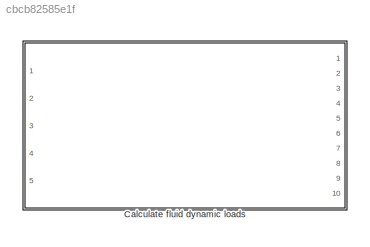
MODEL slx_cbcb82585e1f
KIND library
CONFIG AbsTol = auto
CONFIG EnableMultiTasking = off
CONFIG FixedStep = auto
CONFIG MaxStep = auto
CONFIG MinStep = auto
CONFIG RelTol = 1e-3
CONFIG SampleTimeConstraint = Unconstrained
CONFIG Solver = VariableStepAuto
CONFIG SolverName = VariableStepAuto
CONFIG StartTime = 0.0
CONFIG StopTime = 10.0
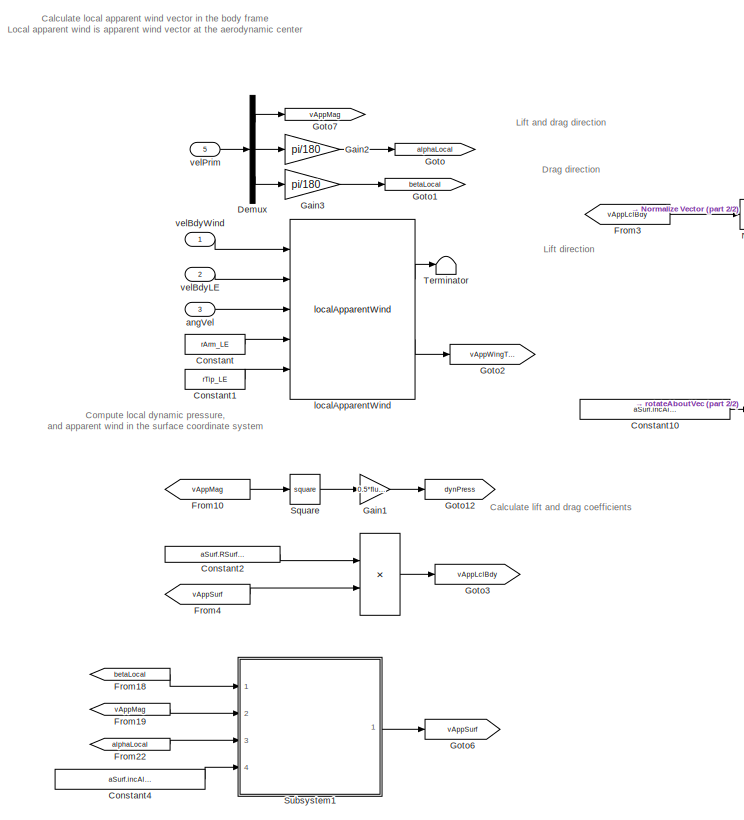
[diagram: Calculate fluid dynamic loads - part 1/2, left side, full height]
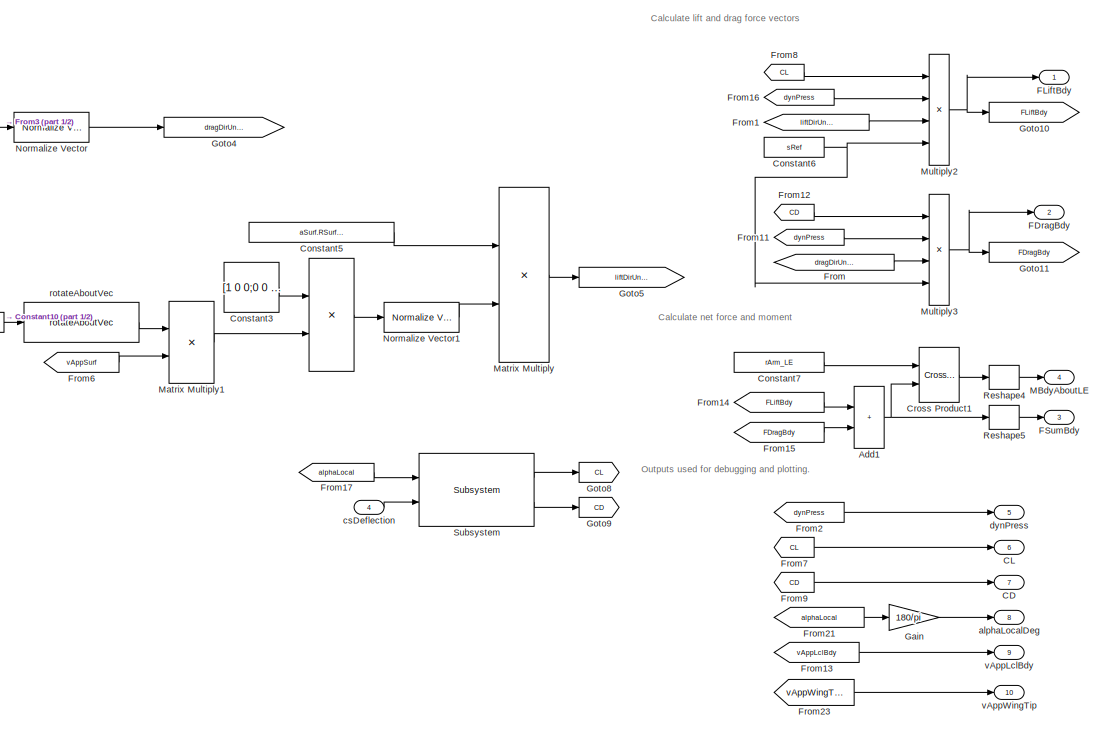
[diagram: Calculate fluid dynamic loads - part 2/2, right side, full height]
BLOCK [SubSystem] Calculate fluid dynamic loads
  Ports = [5, 10]
  RequestExecContextInheritance = off
BLOCK [Product] Calculate fluid dynamic loads/ 
  Multiplication = Matrix(*)
  Ports = [2, 1]
BLOCK [Product] Calculate fluid dynamic loads/  
  Multiplication = Matrix(*)
  Ports = [2, 1]
BLOCK [Sum] Calculate fluid dynamic loads/Add1
  IconShape = rectangular
  Ports = [2, 1]
BLOCK [Outport] Calculate fluid dynamic loads/CD
  Port = 7
  VectorParamsAs1DForOutWhenUnconnected = off
BLOCK [Outport] Calculate fluid dynamic loads/CL
  Port = 6
  VectorParamsAs1DForOutWhenUnconnected = off
BLOCK [Constant] Calculate fluid dynamic loads/Constant
  Value = rArm_LE
  VectorParams1D = off
BLOCK [Constant] Calculate fluid dynamic loads/Constant1
  Value = rTip_LE
  VectorParams1D = off
BLOCK [Constant] Calculate fluid dynamic loads/Constant10
  Value = aSurf.incAlphaUnitVecSurf.Value
  VectorParams1D = off
BLOCK [Constant] Calculate fluid dynamic loads/Constant2
  Value = aSurf.RSurf2Bdy.Value
  VectorParams1D = off
BLOCK [Constant] Calculate fluid dynamic loads/Constant3
  Value = [1 0 0;0 0 0;0 0 1]
  VectorParams1D = off
BLOCK [Constant] Calculate fluid dynamic loads/Constant4
  Value = aSurf.incAlphaUnitVecSurf.Value
  VectorParams1D = off
BLOCK [Constant] Calculate fluid dynamic loads/Constant5
  Value = aSurf.RSurf2Bdy.Value
  VectorParams1D = off
BLOCK [Constant] Calculate fluid dynamic loads/Constant6
  Value = sRef
BLOCK [Constant] Calculate fluid dynamic loads/Constant7
  Value = rArm_LE
  VectorParams1D = off
BLOCK [Reference] Calculate fluid dynamic loads/Cross Product1  REF=vrlib/Utilities/Cross Product
  Ports = [2, 1]
  SourceBlock = vrlib/Utilities/Cross Product
  SourceProductBaseCode = SL
  SourceType = Cross Product
BLOCK [Demux] Calculate fluid dynamic loads/Demux
  Outputs = 3
  Ports = [1, 3]
BLOCK [Outport] Calculate fluid dynamic loads/FDragBdy
  Port = 2
  VectorParamsAs1DForOutWhenUnconnected = off
BLOCK [Outport] Calculate fluid dynamic loads/FLiftBdy
  VectorParamsAs1DForOutWhenUnconnected = off
BLOCK [Outport] Calculate fluid dynamic loads/FSumBdy
  Port = 3
  VectorParamsAs1DForOutWhenUnconnected = off
BLOCK [From] Calculate fluid dynamic loads/From
  GotoTag = dragDirUnitVecBdy
BLOCK [From] Calculate fluid dynamic loads/From1
  GotoTag = liftDirUnitVecBdy
BLOCK [From] Calculate fluid dynamic loads/From10
  GotoTag = vAppMag
BLOCK [From] Calculate fluid dynamic loads/From11
  GotoTag = dynPress
BLOCK [From] Calculate fluid dynamic loads/From12
  GotoTag = CD
BLOCK [From] Calculate fluid dynamic loads/From13
  GotoTag = vAppLclBdy
BLOCK [From] Calculate fluid dynamic loads/From14
  GotoTag = FLiftBdy
BLOCK [From] Calculate fluid dynamic loads/From15
  GotoTag = FDragBdy
BLOCK [From] Calculate fluid dynamic loads/From16
  GotoTag = dynPress
BLOCK [From] Calculate fluid dynamic loads/From17
  GotoTag = alphaLocal
BLOCK [From] Calculate fluid dynamic loads/From18
  GotoTag = betaLocal
BLOCK [From] Calculate fluid dynamic loads/From19
  GotoTag = vAppMag
BLOCK [From] Calculate fluid dynamic loads/From2
  GotoTag = dynPress
BLOCK [From] Calculate fluid dynamic loads/From21
  GotoTag = alphaLocal
BLOCK [From] Calculate fluid dynamic loads/From22
  GotoTag = alphaLocal
BLOCK [From] Calculate fluid dynamic loads/From23
  GotoTag = vAppWingTip
BLOCK [From] Calculate fluid dynamic loads/From3
  GotoTag = vAppLclBdy
BLOCK [From] Calculate fluid dynamic loads/From4
  GotoTag = vAppSurf
BLOCK [From] Calculate fluid dynamic loads/From6
  GotoTag = vAppSurf
BLOCK [From] Calculate fluid dynamic loads/From7
  GotoTag = CL
BLOCK [From] Calculate fluid dynamic loads/From8
  GotoTag = CL
BLOCK [From] Calculate fluid dynamic loads/From9
  GotoTag = CD
BLOCK [Gain] Calculate fluid dynamic loads/Gain
  Gain = 180/pi
BLOCK [Gain] Calculate fluid dynamic loads/Gain1
  Gain = 0.5*fluidDensity
BLOCK [Gain] Calculate fluid dynamic loads/Gain2
  Gain = pi/180
BLOCK [Gain] Calculate fluid dynamic loads/Gain3
  Gain = pi/180
BLOCK [Goto] Calculate fluid dynamic loads/Goto
  GotoTag = alphaLocal
BLOCK [Goto] Calculate fluid dynamic loads/Goto1
  GotoTag = betaLocal
BLOCK [Goto] Calculate fluid dynamic loads/Goto10
  GotoTag = FLiftBdy
BLOCK [Goto] Calculate fluid dynamic loads/Goto11
  GotoTag = FDragBdy
BLOCK [Goto] Calculate fluid dynamic loads/Goto12
  GotoTag = dynPress
BLOCK [Goto] Calculate fluid dynamic loads/Goto2
  GotoTag = vAppWingTip
BLOCK [Goto] Calculate fluid dynamic loads/Goto3
  GotoTag = vAppLclBdy
BLOCK [Goto] Calculate fluid dynamic loads/Goto4
  GotoTag = dragDirUnitVecBdy
BLOCK [Goto] Calculate fluid dynamic loads/Goto5
  GotoTag = liftDirUnitVecBdy
BLOCK [Goto] Calculate fluid dynamic loads/Goto6
  GotoTag = vAppSurf
BLOCK [Goto] Calculate fluid dynamic loads/Goto7
  GotoTag = vAppMag
BLOCK [Goto] Calculate fluid dynamic loads/Goto8
  GotoTag = CL
BLOCK [Goto] Calculate fluid dynamic loads/Goto9
  GotoTag = CD
BLOCK [Outport] Calculate fluid dynamic loads/MBdyAboutLE
  Port = 4
  PortDimensions = [3 1]
  VectorParamsAs1DForOutWhenUnconnected = off
BLOCK [Product] Calculate fluid dynamic loads/Matrix Multiply
  Multiplication = Matrix(*)
  Ports = [2, 1]
BLOCK [Product] Calculate fluid dynamic loads/Matrix Multiply1
  Multiplication = Matrix(*)
  Ports = [2, 1]
BLOCK [Product] Calculate fluid dynamic loads/Multiply2
  Inputs = 4
  Ports = [4, 1]
BLOCK [Product] Calculate fluid dynamic loads/Multiply3
  Inputs = 4
  Ports = [4, 1]
BLOCK [Reference] Calculate fluid dynamic loads/Normalize Vector  REF=vrlib/Utilities/Normalize Vector
  Ports = [1, 1]
  SourceBlock = vrlib/Utilities/Normalize Vector
  SourceProductBaseCode = SL
  SourceType = Normalize Vector
BLOCK [Reference] Calculate fluid dynamic loads/Normalize Vector1  REF=vrlib/Utilities/Normalize Vector
  Ports = [1, 1]
  SourceBlock = vrlib/Utilities/Normalize Vector
  SourceProductBaseCode = SL
  SourceType = Normalize Vector
BLOCK [Reshape] Calculate fluid dynamic loads/Reshape4
  OutputDimensionality = Column vector (2-D)
  Ports = [1, 1]
BLOCK [Reshape] Calculate fluid dynamic loads/Reshape5
  OutputDimensionality = Column vector (2-D)
  Ports = [1, 1]
BLOCK [Math] Calculate fluid dynamic loads/Square
  Operator = square
  Ports = [1, 1]
BLOCK [Reference] Calculate fluid dynamic loads/Subsystem  REF=Copy_of_clAndCdCalculator_cl/Subsystem
  Ports = [2, 2]
  SourceBlock = Copy_of_clAndCdCalculator_cl/Subsystem
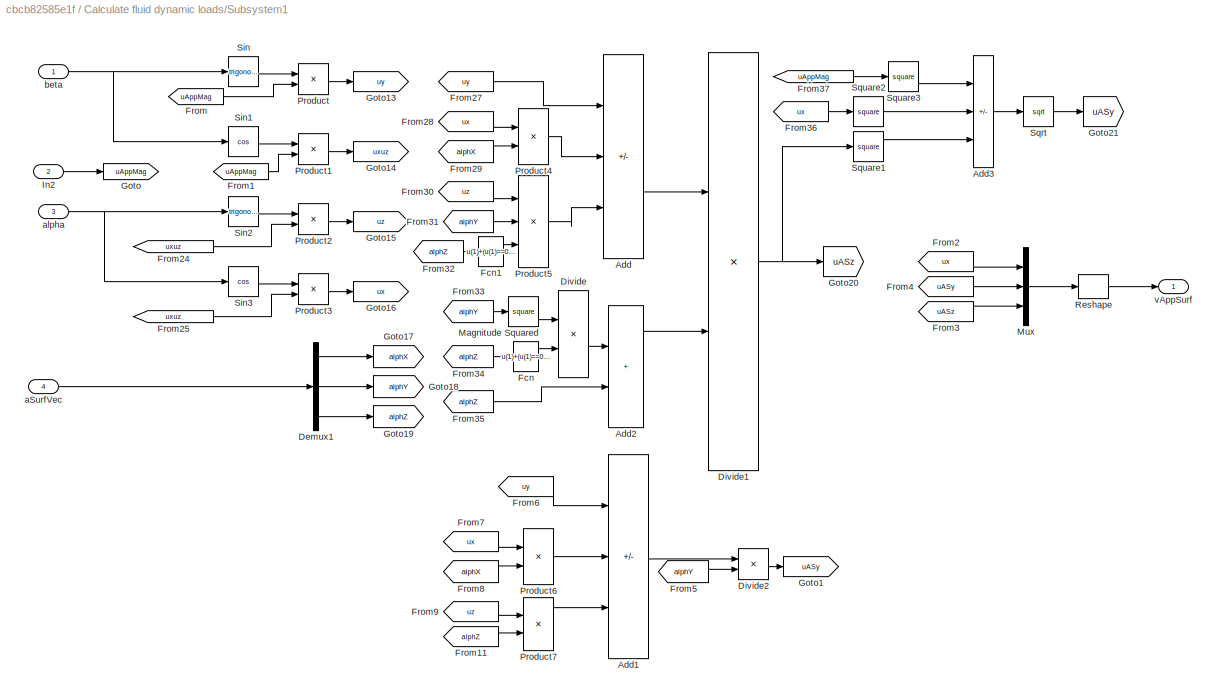
BLOCK [SubSystem] Calculate fluid dynamic loads/Subsystem1
  Ports = [4, 1]
  RequestExecContextInheritance = off
BLOCK [Sum] Calculate fluid dynamic loads/Subsystem1/Add
  IconShape = rectangular
  Inputs = ---
  Ports = [3, 1]
BLOCK [Sum] Calculate fluid dynamic loads/Subsystem1/Add1
  IconShape = rectangular
  Inputs = ---
  Ports = [3, 1]
BLOCK [Sum] Calculate fluid dynamic loads/Subsystem1/Add2
  IconShape = rectangular
  Ports = [2, 1]
BLOCK [Sum] Calculate fluid dynamic loads/Subsystem1/Add3
  Commented = on
  IconShape = rectangular
  Inputs = +--
  Ports = [3, 1]
BLOCK [Demux] Calculate fluid dynamic loads/Subsystem1/Demux1
  Outputs = 3
  Ports = [1, 3]
BLOCK [Product] Calculate fluid dynamic loads/Subsystem1/Divide
  Inputs = */
  Ports = [2, 1]
BLOCK [Product] Calculate fluid dynamic loads/Subsystem1/Divide1
  Inputs = */
  Ports = [2, 1]
BLOCK [Product] Calculate fluid dynamic loads/Subsystem1/Divide2
  Inputs = */
  Ports = [2, 1]
BLOCK [Fcn] Calculate fluid dynamic loads/Subsystem1/Fcn
  Expr = u(1)+(u(1)==0)*eps
BLOCK [Fcn] Calculate fluid dynamic loads/Subsystem1/Fcn1
  Expr = u(1)+(u(1)==0)*eps
BLOCK [From] Calculate fluid dynamic loads/Subsystem1/From
  GotoTag = uAppMag
BLOCK [From] Calculate fluid dynamic loads/Subsystem1/From1
  GotoTag = uAppMag
BLOCK [From] Calculate fluid dynamic loads/Subsystem1/From11
  GotoTag = alphZ
BLOCK [From] Calculate fluid dynamic loads/Subsystem1/From2
  GotoTag = ux
BLOCK [From] Calculate fluid dynamic loads/Subsystem1/From24
  GotoTag = uxuz
BLOCK [From] Calculate fluid dynamic loads/Subsystem1/From25
  GotoTag = uxuz
BLOCK [From] Calculate fluid dynamic loads/Subsystem1/From27
  GotoTag = uy
BLOCK [From] Calculate fluid dynamic loads/Subsystem1/From28
  GotoTag = ux
BLOCK [From] Calculate fluid dynamic loads/Subsystem1/From29
  GotoTag = alphX
BLOCK [From] Calculate fluid dynamic loads/Subsystem1/From3
  GotoTag = uASz
BLOCK [From] Calculate fluid dynamic loads/Subsystem1/From30
  GotoTag = uz
BLOCK [From] Calculate fluid dynamic loads/Subsystem1/From31
  GotoTag = alphY
BLOCK [From] Calculate fluid dynamic loads/Subsystem1/From32
  GotoTag = alphZ
BLOCK [From] Calculate fluid dynamic loads/Subsystem1/From33
  GotoTag = alphY
BLOCK [From] Calculate fluid dynamic loads/Subsystem1/From34
  GotoTag = alphZ
BLOCK [From] Calculate fluid dynamic loads/Subsystem1/From35
  GotoTag = alphZ
BLOCK [From] Calculate fluid dynamic loads/Subsystem1/From36
  Commented = on
  GotoTag = ux
BLOCK [From] Calculate fluid dynamic loads/Subsystem1/From37
  Commented = on
  GotoTag = uAppMag
BLOCK [From] Calculate fluid dynamic loads/Subsystem1/From4
  GotoTag = uASy
BLOCK [From] Calculate fluid dynamic loads/Subsystem1/From5
  GotoTag = alphY
BLOCK [From] Calculate fluid dynamic loads/Subsystem1/From6
  GotoTag = uy
BLOCK [From] Calculate fluid dynamic loads/Subsystem1/From7
  GotoTag = ux
BLOCK [From] Calculate fluid dynamic loads/Subsystem1/From8
  GotoTag = alphX
BLOCK [From] Calculate fluid dynamic loads/Subsystem1/From9
  GotoTag = uz
BLOCK [Goto] Calculate fluid dynamic loads/Subsystem1/Goto
  GotoTag = uAppMag
BLOCK [Goto] Calculate fluid dynamic loads/Subsystem1/Goto1
  GotoTag = uASy
BLOCK [Goto] Calculate fluid dynamic loads/Subsystem1/Goto13
  GotoTag = uy
BLOCK [Goto] Calculate fluid dynamic loads/Subsystem1/Goto14
  GotoTag = uxuz
BLOCK [Goto] Calculate fluid dynamic loads/Subsystem1/Goto15
  GotoTag = uz
BLOCK [Goto] Calculate fluid dynamic loads/Subsystem1/Goto16
  GotoTag = ux
BLOCK [Goto] Calculate fluid dynamic loads/Subsystem1/Goto17
  GotoTag = alphX
BLOCK [Goto] Calculate fluid dynamic loads/Subsystem1/Goto18
  GotoTag = alphY
BLOCK [Goto] Calculate fluid dynamic loads/Subsystem1/Goto19
  GotoTag = alphZ
BLOCK [Goto] Calculate fluid dynamic loads/Subsystem1/Goto20
  GotoTag = uASz
BLOCK [Goto] Calculate fluid dynamic loads/Subsystem1/Goto21
  Commented = on
  GotoTag = uASy
BLOCK [Inport] Calculate fluid dynamic loads/Subsystem1/In2
  Port = 2
BLOCK [Math] Calculate fluid dynamic loads/Subsystem1/Magnitude Squared
  Operator = square
  Ports = [1, 1]
BLOCK [Mux] Calculate fluid dynamic loads/Subsystem1/Mux
  DisplayOption = bar
  Inputs = 3
  Ports = [3, 1]
BLOCK [Product] Calculate fluid dynamic loads/Subsystem1/Product
  Ports = [2, 1]
BLOCK [Product] Calculate fluid dynamic loads/Subsystem1/Product1
  Ports = [2, 1]
BLOCK [Product] Calculate fluid dynamic loads/Subsystem1/Product2
  Ports = [2, 1]
BLOCK [Product] Calculate fluid dynamic loads/Subsystem1/Product3
  Ports = [2, 1]
BLOCK [Product] Calculate fluid dynamic loads/Subsystem1/Product4
  Ports = [2, 1]
BLOCK [Product] Calculate fluid dynamic loads/Subsystem1/Product5
  Inputs = **/
  Ports = [3, 1]
BLOCK [Product] Calculate fluid dynamic loads/Subsystem1/Product6
  Ports = [2, 1]
BLOCK [Product] Calculate fluid dynamic loads/Subsystem1/Product7
  Inputs = **
  Ports = [2, 1]
BLOCK [Reshape] Calculate fluid dynamic loads/Subsystem1/Reshape
  OutputDimensionality = Column vector (2-D)
  Ports = [1, 1]
BLOCK [Trigonometry] Calculate fluid dynamic loads/Subsystem1/Sin
  Ports = [1, 1]
BLOCK [Trigonometry] Calculate fluid dynamic loads/Subsystem1/Sin1
  Operator = cos
  Ports = [1, 1]
BLOCK [Trigonometry] Calculate fluid dynamic loads/Subsystem1/Sin2
  Ports = [1, 1]
BLOCK [Trigonometry] Calculate fluid dynamic loads/Subsystem1/Sin3
  Operator = cos
  Ports = [1, 1]
BLOCK [Sqrt] Calculate fluid dynamic loads/Subsystem1/Sqrt
  Commented = on
BLOCK [Math] Calculate fluid dynamic loads/Subsystem1/Square1
  Commented = on
  Operator = square
  Ports = [1, 1]
BLOCK [Math] Calculate fluid dynamic loads/Subsystem1/Square2
  Commented = on
  Operator = square
  Ports = [1, 1]
BLOCK [Math] Calculate fluid dynamic loads/Subsystem1/Square3
  Commented = on
  Operator = square
  Ports = [1, 1]
BLOCK [Inport] Calculate fluid dynamic loads/Subsystem1/aSurfVec
  Port = 4
BLOCK [Inport] Calculate fluid dynamic loads/Subsystem1/alpha
  Port = 3
BLOCK [Inport] Calculate fluid dynamic loads/Subsystem1/beta
BLOCK [Outport] Calculate fluid dynamic loads/Subsystem1/vAppSurf
BLOCK [Terminator] Calculate fluid dynamic loads/Terminator
BLOCK [Outport] Calculate fluid dynamic loads/alphaLocalDeg
  Port = 8
  VectorParamsAs1DForOutWhenUnconnected = off
BLOCK [Inport] Calculate fluid dynamic loads/angVel
  Port = 3
BLOCK [Inport] Calculate fluid dynamic loads/csDeflection
  Port = 4
BLOCK [Outport] Calculate fluid dynamic loads/dynPress
  Port = 5
  VectorParamsAs1DForOutWhenUnconnected = off
BLOCK [Reference] Calculate fluid dynamic loads/localApparentWind  REF=localApparentWind_ul/localApparentWind
  Ports = [5, 2]
  SourceBlock = localApparentWind_ul/localApparentWind
  SourceType = SubSystem
BLOCK [Reference] Calculate fluid dynamic loads/rotateAboutVec  REF=rotateAboutVec/rotateAboutVec
  Ports = [1, 1]
  SourceBlock = rotateAboutVec/rotateAboutVec
BLOCK [Outport] Calculate fluid dynamic loads/vAppLclBdy
  Port = 9
  VectorParamsAs1DForOutWhenUnconnected = off
BLOCK [Outport] Calculate fluid dynamic loads/vAppWingTip
  Port = 10
  VectorParamsAs1DForOutWhenUnconnected = off
BLOCK [Inport] Calculate fluid dynamic loads/velBdyLE
  Port = 2
BLOCK [Inport] Calculate fluid dynamic loads/velBdyWind
BLOCK [Inport] Calculate fluid dynamic loads/velPrim
  Port = 5
ANNOTATION Calculate fluid dynamic loads: Calculate lift and drag coefficients
ANNOTATION Calculate fluid dynamic loads: Calculate lift and drag force vectors
ANNOTATION Calculate fluid dynamic loads: Calculate local apparent wind vector in the body frame Local apparent wind is apparent wind vector at the aerodynamic center
ANNOTATION Calculate fluid dynamic loads: Calculate net force and moment
ANNOTATION Calculate fluid dynamic loads: Compute local dynamic pressure, and apparent wind in the surface coordinate system
ANNOTATION Calculate fluid dynamic loads: Drag direction
ANNOTATION Calculate fluid dynamic loads: Lift and drag direction
ANNOTATION Calculate fluid dynamic loads: Lift direction
ANNOTATION Calculate fluid dynamic loads: Outputs used for debugging and plotting.
LINE Calculate fluid dynamic loads/  :1 -> Calculate fluid dynamic loads/Goto3:1
LINE Calculate fluid dynamic loads/ :1 -> Calculate fluid dynamic loads/Normalize Vector1:1
NET Calculate fluid dynamic loads/Add1:1 -> Calculate fluid dynamic loads/Cross Product1:2, Calculate fluid dynamic loads/Reshape5:1
LINE Calculate fluid dynamic loads/Constant10:1 -> Calculate fluid dynamic loads/rotateAboutVec:1
LINE Calculate fluid dynamic loads/Constant1:1 -> Calculate fluid dynamic loads/localApparentWind:5
LINE Calculate fluid dynamic loads/Constant2:1 -> Calculate fluid dynamic loads/  :1
LINE Calculate fluid dynamic loads/Constant3:1 -> Calculate fluid dynamic loads/ :1
LINE Calculate fluid dynamic loads/Constant4:1 -> Calculate fluid dynamic loads/Subsystem1:4
LINE Calculate fluid dynamic loads/Constant5:1 -> Calculate fluid dynamic loads/Matrix Multiply:1
NET Calculate fluid dynamic loads/Constant6:1 -> Calculate fluid dynamic loads/Multiply2:4, Calculate fluid dynamic loads/Multiply3:4
LINE Calculate fluid dynamic loads/Constant7:1 -> Calculate fluid dynamic loads/Cross Product1:1
LINE Calculate fluid dynamic loads/Constant:1 -> Calculate fluid dynamic loads/localApparentWind:4
LINE Calculate fluid dynamic loads/Cross Product1:1 -> Calculate fluid dynamic loads/Reshape4:1
LINE Calculate fluid dynamic loads/Demux:1 -> Calculate fluid dynamic loads/Goto7:1
LINE Calculate fluid dynamic loads/Demux:2 -> Calculate fluid dynamic loads/Gain2:1
LINE Calculate fluid dynamic loads/Demux:3 -> Calculate fluid dynamic loads/Gain3:1
LINE Calculate fluid dynamic loads/From10:1 -> Calculate fluid dynamic loads/Square:1
LINE Calculate fluid dynamic loads/From11:1 -> Calculate fluid dynamic loads/Multiply3:2
LINE Calculate fluid dynamic loads/From12:1 -> Calculate fluid dynamic loads/Multiply3:1
LINE Calculate fluid dynamic loads/From13:1 -> Calculate fluid dynamic loads/vAppLclBdy:1
LINE Calculate fluid dynamic loads/From14:1 -> Calculate fluid dynamic loads/Add1:1
LINE Calculate fluid dynamic loads/From15:1 -> Calculate fluid dynamic loads/Add1:2
LINE Calculate fluid dynamic loads/From16:1 -> Calculate fluid dynamic loads/Multiply2:2
LINE Calculate fluid dynamic loads/From17:1 -> Calculate fluid dynamic loads/Subsystem:1
LINE Calculate fluid dynamic loads/From18:1 -> Calculate fluid dynamic loads/Subsystem1:1
LINE Calculate fluid dynamic loads/From19:1 -> Calculate fluid dynamic loads/Subsystem1:2
LINE Calculate fluid dynamic loads/From1:1 -> Calculate fluid dynamic loads/Multiply2:3
LINE Calculate fluid dynamic loads/From21:1 -> Calculate fluid dynamic loads/Gain:1
LINE Calculate fluid dynamic loads/From22:1 -> Calculate fluid dynamic loads/Subsystem1:3
LINE Calculate fluid dynamic loads/From23:1 -> Calculate fluid dynamic loads/vAppWingTip:1
LINE Calculate fluid dynamic loads/From2:1 -> Calculate fluid dynamic loads/dynPress:1
LINE Calculate fluid dynamic loads/From3:1 -> Calculate fluid dynamic loads/Normalize Vector:1
LINE Calculate fluid dynamic loads/From4:1 -> Calculate fluid dynamic loads/  :2
LINE Calculate fluid dynamic loads/From6:1 -> Calculate fluid dynamic loads/Matrix Multiply1:2
LINE Calculate fluid dynamic loads/From7:1 -> Calculate fluid dynamic loads/CL:1
LINE Calculate fluid dynamic loads/From8:1 -> Calculate fluid dynamic loads/Multiply2:1
LINE Calculate fluid dynamic loads/From9:1 -> Calculate fluid dynamic loads/CD:1
LINE Calculate fluid dynamic loads/From:1 -> Calculate fluid dynamic loads/Multiply3:3
LINE Calculate fluid dynamic loads/Gain1:1 -> Calculate fluid dynamic loads/Goto12:1
LINE Calculate fluid dynamic loads/Gain2:1 -> Calculate fluid dynamic loads/Goto:1
LINE Calculate fluid dynamic loads/Gain3:1 -> Calculate fluid dynamic loads/Goto1:1
LINE Calculate fluid dynamic loads/Gain:1 -> Calculate fluid dynamic loads/alphaLocalDeg:1
LINE Calculate fluid dynamic loads/Matrix Multiply1:1 -> Calculate fluid dynamic loads/ :2
LINE Calculate fluid dynamic loads/Matrix Multiply:1 -> Calculate fluid dynamic loads/Goto5:1
NET Calculate fluid dynamic loads/Multiply2:1 -> Calculate fluid dynamic loads/FLiftBdy:1, Calculate fluid dynamic loads/Goto10:1
NET Calculate fluid dynamic loads/Multiply3:1 -> Calculate fluid dynamic loads/FDragBdy:1, Calculate fluid dynamic loads/Goto11:1
LINE Calculate fluid dynamic loads/Normalize Vector1:1 -> Calculate fluid dynamic loads/Matrix Multiply:2
LINE Calculate fluid dynamic loads/Normalize Vector:1 -> Calculate fluid dynamic loads/Goto4:1
LINE Calculate fluid dynamic loads/Reshape4:1 -> Calculate fluid dynamic loads/MBdyAboutLE:1
LINE Calculate fluid dynamic loads/Reshape5:1 -> Calculate fluid dynamic loads/FSumBdy:1
LINE Calculate fluid dynamic loads/Square:1 -> Calculate fluid dynamic loads/Gain1:1
LINE Calculate fluid dynamic loads/Subsystem1/Add1:1 -> Calculate fluid dynamic loads/Subsystem1/Divide2:1
LINE Calculate fluid dynamic loads/Subsystem1/Add2:1 -> Calculate fluid dynamic loads/Subsystem1/Divide1:2
LINE Calculate fluid dynamic loads/Subsystem1/Add3:1 -> Calculate fluid dynamic loads/Subsystem1/Sqrt:1
LINE Calculate fluid dynamic loads/Subsystem1/Add:1 -> Calculate fluid dynamic loads/Subsystem1/Divide1:1
LINE Calculate fluid dynamic loads/Subsystem1/Demux1:1 -> Calculate fluid dynamic loads/Subsystem1/Goto17:1
LINE Calculate fluid dynamic loads/Subsystem1/Demux1:2 -> Calculate fluid dynamic loads/Subsystem1/Goto18:1
LINE Calculate fluid dynamic loads/Subsystem1/Demux1:3 -> Calculate fluid dynamic loads/Subsystem1/Goto19:1
NET Calculate fluid dynamic loads/Subsystem1/Divide1:1 -> Calculate fluid dynamic loads/Subsystem1/Goto20:1, Calculate fluid dynamic loads/Subsystem1/Square1:1
LINE Calculate fluid dynamic loads/Subsystem1/Divide2:1 -> Calculate fluid dynamic loads/Subsystem1/Goto1:1
LINE Calculate fluid dynamic loads/Subsystem1/Divide:1 -> Calculate fluid dynamic loads/Subsystem1/Add2:1
LINE Calculate fluid dynamic loads/Subsystem1/Fcn1:1 -> Calculate fluid dynamic loads/Subsystem1/Product5:3
LINE Calculate fluid dynamic loads/Subsystem1/Fcn:1 -> Calculate fluid dynamic loads/Subsystem1/Divide:2
LINE Calculate fluid dynamic loads/Subsystem1/From11:1 -> Calculate fluid dynamic loads/Subsystem1/Product7:2
LINE Calculate fluid dynamic loads/Subsystem1/From1:1 -> Calculate fluid dynamic loads/Subsystem1/Product1:2
LINE Calculate fluid dynamic loads/Subsystem1/From24:1 -> Calculate fluid dynamic loads/Subsystem1/Product2:2
LINE Calculate fluid dynamic loads/Subsystem1/From25:1 -> Calculate fluid dynamic loads/Subsystem1/Product3:2
LINE Calculate fluid dynamic loads/Subsystem1/From27:1 -> Calculate fluid dynamic loads/Subsystem1/Add:1
LINE Calculate fluid dynamic loads/Subsystem1/From28:1 -> Calculate fluid dynamic loads/Subsystem1/Product4:1
LINE Calculate fluid dynamic loads/Subsystem1/From29:1 -> Calculate fluid dynamic loads/Subsystem1/Product4:2
LINE Calculate fluid dynamic loads/Subsystem1/From2:1 -> Calculate fluid dynamic loads/Subsystem1/Mux:1
LINE Calculate fluid dynamic loads/Subsystem1/From30:1 -> Calculate fluid dynamic loads/Subsystem1/Product5:1
LINE Calculate fluid dynamic loads/Subsystem1/From31:1 -> Calculate fluid dynamic loads/Subsystem1/Product5:2
LINE Calculate fluid dynamic loads/Subsystem1/From32:1 -> Calculate fluid dynamic loads/Subsystem1/Fcn1:1
LINE Calculate fluid dynamic loads/Subsystem1/From33:1 -> Calculate fluid dynamic loads/Subsystem1/Magnitude Squared:1
LINE Calculate fluid dynamic loads/Subsystem1/From34:1 -> Calculate fluid dynamic loads/Subsystem1/Fcn:1
LINE Calculate fluid dynamic loads/Subsystem1/From35:1 -> Calculate fluid dynamic loads/Subsystem1/Add2:2
LINE Calculate fluid dynamic loads/Subsystem1/From36:1 -> Calculate fluid dynamic loads/Subsystem1/Square2:1
LINE Calculate fluid dynamic loads/Subsystem1/From37:1 -> Calculate fluid dynamic loads/Subsystem1/Square3:1
LINE Calculate fluid dynamic loads/Subsystem1/From3:1 -> Calculate fluid dynamic loads/Subsystem1/Mux:3
LINE Calculate fluid dynamic loads/Subsystem1/From4:1 -> Calculate fluid dynamic loads/Subsystem1/Mux:2
LINE Calculate fluid dynamic loads/Subsystem1/From5:1 -> Calculate fluid dynamic loads/Subsystem1/Divide2:2
LINE Calculate fluid dynamic loads/Subsystem1/From6:1 -> Calculate fluid dynamic loads/Subsystem1/Add1:1
LINE Calculate fluid dynamic loads/Subsystem1/From7:1 -> Calculate fluid dynamic loads/Subsystem1/Product6:1
LINE Calculate fluid dynamic loads/Subsystem1/From8:1 -> Calculate fluid dynamic loads/Subsystem1/Product6:2
LINE Calculate fluid dynamic loads/Subsystem1/From9:1 -> Calculate fluid dynamic loads/Subsystem1/Product7:1
LINE Calculate fluid dynamic loads/Subsystem1/From:1 -> Calculate fluid dynamic loads/Subsystem1/Product:2
LINE Calculate fluid dynamic loads/Subsystem1/In2:1 -> Calculate fluid dynamic loads/Subsystem1/Goto:1
LINE Calculate fluid dynamic loads/Subsystem1/Magnitude Squared:1 -> Calculate fluid dynamic loads/Subsystem1/Divide:1
LINE Calculate fluid dynamic loads/Subsystem1/Mux:1 -> Calculate fluid dynamic loads/Subsystem1/Reshape:1
LINE Calculate fluid dynamic loads/Subsystem1/Product1:1 -> Calculate fluid dynamic loads/Subsystem1/Goto14:1
LINE Calculate fluid dynamic loads/Subsystem1/Product2:1 -> Calculate fluid dynamic loads/Subsystem1/Goto15:1
LINE Calculate fluid dynamic loads/Subsystem1/Product3:1 -> Calculate fluid dynamic loads/Subsystem1/Goto16:1
LINE Calculate fluid dynamic loads/Subsystem1/Product4:1 -> Calculate fluid dynamic loads/Subsystem1/Add:2
LINE Calculate fluid dynamic loads/Subsystem1/Product5:1 -> Calculate fluid dynamic loads/Subsystem1/Add:3
LINE Calculate fluid dynamic loads/Subsystem1/Product6:1 -> Calculate fluid dynamic loads/Subsystem1/Add1:2
LINE Calculate fluid dynamic loads/Subsystem1/Product7:1 -> Calculate fluid dynamic loads/Subsystem1/Add1:3
LINE Calculate fluid dynamic loads/Subsystem1/Product:1 -> Calculate fluid dynamic loads/Subsystem1/Goto13:1
LINE Calculate fluid dynamic loads/Subsystem1/Reshape:1 -> Calculate fluid dynamic loads/Subsystem1/vAppSurf:1
LINE Calculate fluid dynamic loads/Subsystem1/Sin1:1 -> Calculate fluid dynamic loads/Subsystem1/Product1:1
LINE Calculate fluid dynamic loads/Subsystem1/Sin2:1 -> Calculate fluid dynamic loads/Subsystem1/Product2:1
LINE Calculate fluid dynamic loads/Subsystem1/Sin3:1 -> Calculate fluid dynamic loads/Subsystem1/Product3:1
LINE Calculate fluid dynamic loads/Subsystem1/Sin:1 -> Calculate fluid dynamic loads/Subsystem1/Product:1
LINE Calculate fluid dynamic loads/Subsystem1/Sqrt:1 -> Calculate fluid dynamic loads/Subsystem1/Goto21:1
LINE Calculate fluid dynamic loads/Subsystem1/Square1:1 -> Calculate fluid dynamic loads/Subsystem1/Add3:3
LINE Calculate fluid dynamic loads/Subsystem1/Square2:1 -> Calculate fluid dynamic loads/Subsystem1/Add3:2
LINE Calculate fluid dynamic loads/Subsystem1/Square3:1 -> Calculate fluid dynamic loads/Subsystem1/Add3:1
LINE Calculate fluid dynamic loads/Subsystem1/aSurfVec:1 -> Calculate fluid dynamic loads/Subsystem1/Demux1:1
NET Calculate fluid dynamic loads/Subsystem1/alpha:1 -> Calculate fluid dynamic loads/Subsystem1/Sin2:1, Calculate fluid dynamic loads/Subsystem1/Sin3:1
NET Calculate fluid dynamic loads/Subsystem1/beta:1 -> Calculate fluid dynamic loads/Subsystem1/Sin1:1, Calculate fluid dynamic loads/Subsystem1/Sin:1
LINE Calculate fluid dynamic loads/Subsystem1:1 -> Calculate fluid dynamic loads/Goto6:1
LINE Calculate fluid dynamic loads/Subsystem:1 -> Calculate fluid dynamic loads/Goto8:1
LINE Calculate fluid dynamic loads/Subsystem:2 -> Calculate fluid dynamic loads/Goto9:1
LINE Calculate fluid dynamic loads/angVel:1 -> Calculate fluid dynamic loads/localApparentWind:3
LINE Calculate fluid dynamic loads/csDeflection:1 -> Calculate fluid dynamic loads/Subsystem:2
LINE Calculate fluid dynamic loads/localApparentWind:1 -> Calculate fluid dynamic loads/Terminator:1
LINE Calculate fluid dynamic loads/localApparentWind:2 -> Calculate fluid dynamic loads/Goto2:1
LINE Calculate fluid dynamic loads/rotateAboutVec:1 -> Calculate fluid dynamic loads/Matrix Multiply1:1
LINE Calculate fluid dynamic loads/velBdyLE:1 -> Calculate fluid dynamic loads/localApparentWind:2
LINE Calculate fluid dynamic loads/velBdyWind:1 -> Calculate fluid dynamic loads/localApparentWind:1
LINE Calculate fluid dynamic loads/velPrim:1 -> Calculate fluid dynamic loads/Demux:1
note: NET lines group one-source signal fan-out (src -> all destinations, sorted); 1:1 wires keep LINE
